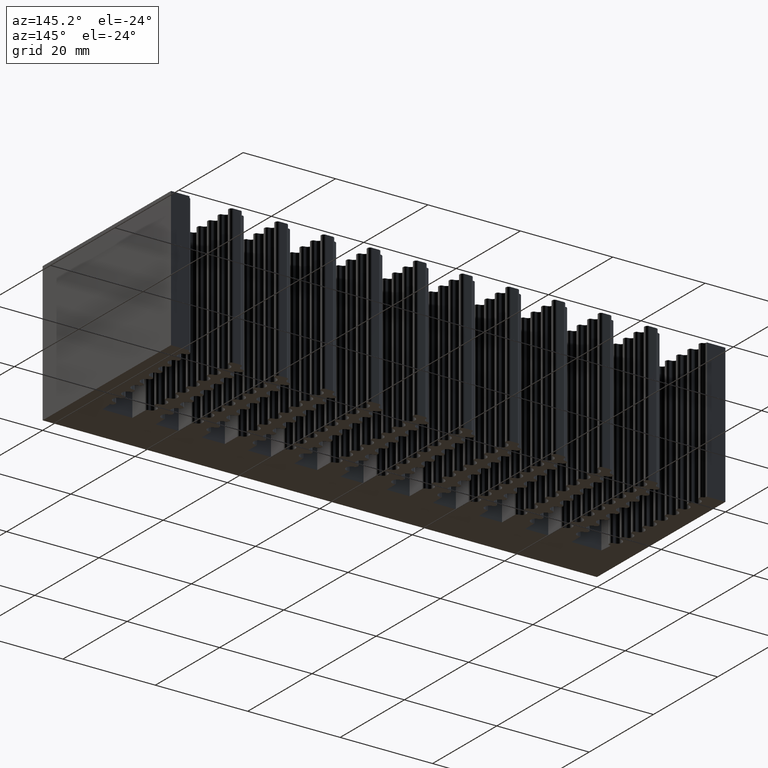
[diagram: clean part render]
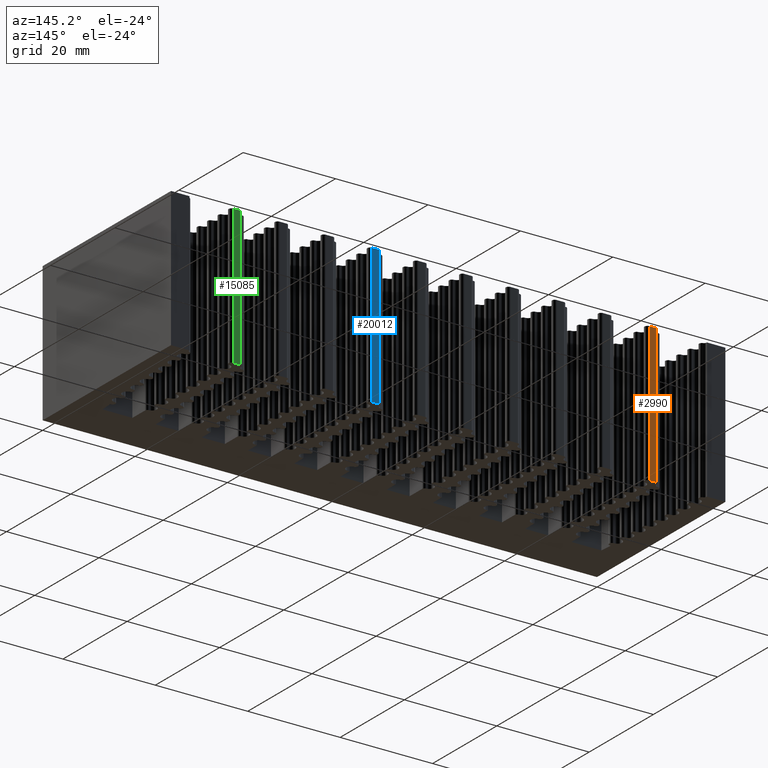
[diagram: same view with three faces highlighted in distinct colors, each labeled with its STEP entity id]
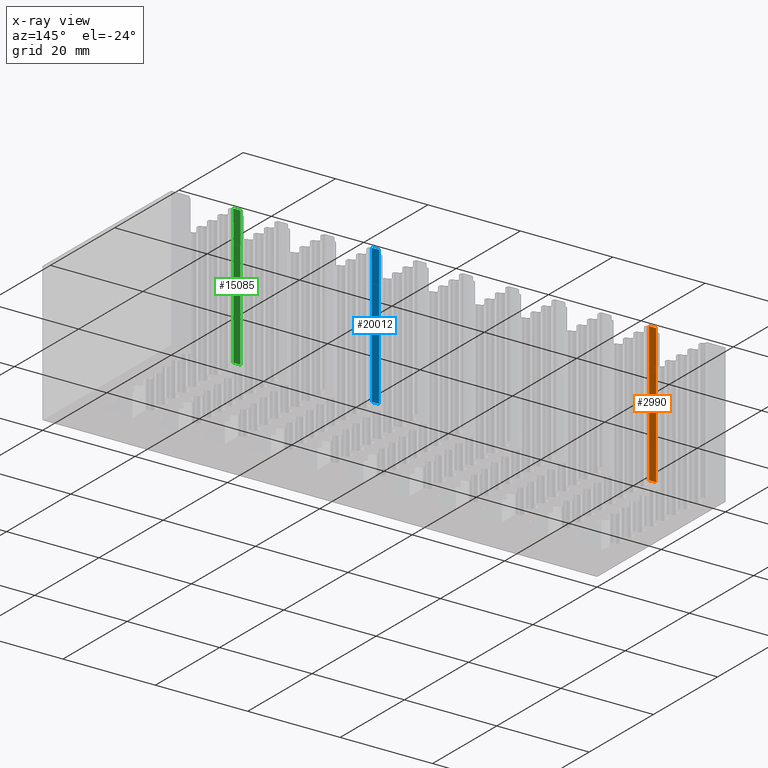
[diagram: x-ray of the same camera — body ghosted, the three highlighted faces saturated]
A machine part, auxiliary view with three faces highlighted in distinct colors.
The next image is the same camera in x-ray (body ghosted, the three faces saturated) — at least one of them is partly hidden behind the body in this view.
Their STEP definitions:

[orange] entity #2990 — the highlighted planar face has unit normal (0, 1, -0).
#1386 = PLANE ( 'NONE',  #7652 ) ;
#1420 = DIRECTION ( 'NONE',  ( -1.000000000000000000, 0.0000000000000000000, 0.0000000000000000000 ) ) ;
#1451 = ORIENTED_EDGE ( 'NONE', *, *, #18421, .T. ) ;
#2717 = EDGE_CURVE ( 'NONE', #8803, #17732, #8806, .T. ) ;
#2928 = DIRECTION ( 'NONE',  ( 0.0000000000000000000, 0.0000000000000000000, 1.000000000000000000 ) ) ;
#2990 = ADVANCED_FACE ( 'NONE', ( #11439 ), #1386, .T. ) ;
#3263 = VERTEX_POINT ( 'NONE', #4126 ) ;
#3331 = VECTOR ( 'NONE', #2928, 1000.000000000000000 ) ;
#3346 = EDGE_CURVE ( 'NONE', #3263, #17732, #21036, .T. ) ;
#3411 = LINE ( 'NONE', #6610, #20904 ) ;
#4126 = CARTESIAN_POINT ( 'NONE',  ( 14.98997438783720959, 39.99999999999998579, -30.00000000000000000 ) ) ;
#5208 = EDGE_LOOP ( 'NONE', ( #15712, #9806, #1451, #14667 ) ) ;
#6610 = CARTESIAN_POINT ( 'NONE',  ( 16.51038164213053250, 39.99999999999998579, -30.00000000000000000 ) ) ;
#6818 = DIRECTION ( 'NONE',  ( -1.000000000000000000, 0.0000000000000000000, 0.0000000000000000000 ) ) ;
#7114 = CARTESIAN_POINT ( 'NONE',  ( 14.98997438783720959, 39.99999999999998579, 0.0000000000000000000 ) ) ;
#7652 = AXIS2_PLACEMENT_3D ( 'NONE', #20053, #9792, #9682 ) ;
#7667 = CARTESIAN_POINT ( 'NONE',  ( 14.98997438783720959, 39.99999999999998579, -30.00000000000000000 ) ) ;
#8715 = CARTESIAN_POINT ( 'NONE',  ( 16.51038164213053250, 39.99999999999998579, 0.0000000000000000000 ) ) ;
#8803 = VERTEX_POINT ( 'NONE', #14957 ) ;
#8806 = LINE ( 'NONE', #8715, #11517 ) ;
#9682 = DIRECTION ( 'NONE',  ( 0.0000000000000000000, 0.0000000000000000000, 1.000000000000000000 ) ) ;
#9792 = DIRECTION ( 'NONE',  ( 0.0000000000000000000, 1.000000000000000000, -0.0000000000000000000 ) ) ;
#9806 = ORIENTED_EDGE ( 'NONE', *, *, #16130, .F. ) ;
#10659 = VECTOR ( 'NONE', #14301, 1000.000000000000000 ) ;
#11439 = FACE_OUTER_BOUND ( 'NONE', #5208, .T. ) ;
#11517 = VECTOR ( 'NONE', #6818, 1000.000000000000000 ) ;
#14301 = DIRECTION ( 'NONE',  ( 0.0000000000000000000, 0.0000000000000000000, 1.000000000000000000 ) ) ;
#14565 = CARTESIAN_POINT ( 'NONE',  ( 16.51038164213053250, 40.00000000000003553, -30.00000000000000000 ) ) ;
#14667 = ORIENTED_EDGE ( 'NONE', *, *, #3346, .T. ) ;
#14957 = CARTESIAN_POINT ( 'NONE',  ( 16.51038164213053250, 40.00000000000003553, 0.0000000000000000000 ) ) ;
#15712 = ORIENTED_EDGE ( 'NONE', *, *, #2717, .F. ) ;
#16130 = EDGE_CURVE ( 'NONE', #16995, #8803, #17955, .T. ) ;
#16995 = VERTEX_POINT ( 'NONE', #14565 ) ;
#17732 = VERTEX_POINT ( 'NONE', #7114 ) ;
#17955 = LINE ( 'NONE', #19731, #3331 ) ;
#18421 = EDGE_CURVE ( 'NONE', #16995, #3263, #3411, .T. ) ;
#19731 = CARTESIAN_POINT ( 'NONE',  ( 16.51038164213053250, 40.00000000000003553, -30.00000000000000000 ) ) ;
#20053 = CARTESIAN_POINT ( 'NONE',  ( 16.51038164213053250, 39.99999999999998579, -30.00000000000000000 ) ) ;
#20904 = VECTOR ( 'NONE', #1420, 1000.000000000000000 ) ;
#21036 = LINE ( 'NONE', #7667, #10659 ) ;

[blue] entity #20012 — the highlighted planar face has unit normal (0, 1, -0).
#664 = CARTESIAN_POINT ( 'NONE',  ( 76.51038164213051118, 40.00000000000003553, -30.00000000000000000 ) ) ;
#1277 = VERTEX_POINT ( 'NONE', #8045 ) ;
#1398 = CARTESIAN_POINT ( 'NONE',  ( 76.51038164213051118, 40.00000000000003553, 0.0000000000000000000 ) ) ;
#3287 = AXIS2_PLACEMENT_3D ( 'NONE', #3856, #12496, #20669 ) ;
#3856 = CARTESIAN_POINT ( 'NONE',  ( 76.51038164213051118, 39.99999999999998579, -30.00000000000000000 ) ) ;
#3950 = DIRECTION ( 'NONE',  ( 0.0000000000000000000, 0.0000000000000000000, 1.000000000000000000 ) ) ;
#4295 = EDGE_CURVE ( 'NONE', #1277, #9878, #19781, .T. ) ;
#4501 = DIRECTION ( 'NONE',  ( -1.000000000000000000, 0.0000000000000000000, 0.0000000000000000000 ) ) ;
#5092 = VECTOR ( 'NONE', #3950, 1000.000000000000000 ) ;
#7066 = EDGE_CURVE ( 'NONE', #11268, #9878, #17504, .T. ) ;
#7095 = VECTOR ( 'NONE', #13283, 1000.000000000000000 ) ;
#8045 = CARTESIAN_POINT ( 'NONE',  ( 74.98997438783715097, 39.99999999999998579, -30.00000000000000000 ) ) ;
#9199 = DIRECTION ( 'NONE',  ( -1.000000000000000000, 0.0000000000000000000, 0.0000000000000000000 ) ) ;
#9487 = EDGE_CURVE ( 'NONE', #14461, #1277, #21422, .T. ) ;
#9662 = EDGE_LOOP ( 'NONE', ( #18824, #9810, #21471, #19739 ) ) ;
#9810 = ORIENTED_EDGE ( 'NONE', *, *, #20802, .F. ) ;
#9878 = VERTEX_POINT ( 'NONE', #17746 ) ;
#10650 = VECTOR ( 'NONE', #9199, 1000.000000000000000 ) ;
#11268 = VERTEX_POINT ( 'NONE', #1398 ) ;
#11355 = CARTESIAN_POINT ( 'NONE',  ( 76.51038164213051118, 39.99999999999998579, -30.00000000000000000 ) ) ;
#11583 = VECTOR ( 'NONE', #4501, 1000.000000000000000 ) ;
#12496 = DIRECTION ( 'NONE',  ( 0.0000000000000000000, 1.000000000000000000, -0.0000000000000000000 ) ) ;
#12923 = CARTESIAN_POINT ( 'NONE',  ( 76.51038164213051118, 40.00000000000003553, -30.00000000000000000 ) ) ;
#13283 = DIRECTION ( 'NONE',  ( 0.0000000000000000000, 0.0000000000000000000, 1.000000000000000000 ) ) ;
#13932 = PLANE ( 'NONE',  #3287 ) ;
#14461 = VERTEX_POINT ( 'NONE', #12923 ) ;
#16701 = CARTESIAN_POINT ( 'NONE',  ( 74.98997438783715097, 39.99999999999998579, -30.00000000000000000 ) ) ;
#17504 = LINE ( 'NONE', #19030, #10650 ) ;
#17665 = FACE_OUTER_BOUND ( 'NONE', #9662, .T. ) ;
#17746 = CARTESIAN_POINT ( 'NONE',  ( 74.98997438783715097, 39.99999999999998579, 0.0000000000000000000 ) ) ;
#18824 = ORIENTED_EDGE ( 'NONE', *, *, #7066, .F. ) ;
#18988 = LINE ( 'NONE', #664, #5092 ) ;
#19030 = CARTESIAN_POINT ( 'NONE',  ( 76.51038164213051118, 39.99999999999998579, 0.0000000000000000000 ) ) ;
#19739 = ORIENTED_EDGE ( 'NONE', *, *, #4295, .T. ) ;
#19781 = LINE ( 'NONE', #16701, #7095 ) ;
#20012 = ADVANCED_FACE ( 'NONE', ( #17665 ), #13932, .T. ) ;
#20669 = DIRECTION ( 'NONE',  ( 0.0000000000000000000, 0.0000000000000000000, 1.000000000000000000 ) ) ;
#20802 = EDGE_CURVE ( 'NONE', #14461, #11268, #18988, .T. ) ;
#21422 = LINE ( 'NONE', #11355, #11583 ) ;
#21471 = ORIENTED_EDGE ( 'NONE', *, *, #9487, .T. ) ;

[green] entity #15085 — the highlighted planar face has unit normal (0, 1, -0).
#188 = ORIENTED_EDGE ( 'NONE', *, *, #15144, .T. ) ;
#400 = CARTESIAN_POINT ( 'NONE',  ( 104.9899743878371510, 39.99999999999998579, -30.00000000000000000 ) ) ;
#413 = DIRECTION ( 'NONE',  ( -1.000000000000000000, 0.0000000000000000000, 0.0000000000000000000 ) ) ;
#2537 = ORIENTED_EDGE ( 'NONE', *, *, #10426, .F. ) ;
#2609 = VECTOR ( 'NONE', #413, 1000.000000000000000 ) ;
#2623 = ORIENTED_EDGE ( 'NONE', *, *, #6718, .T. ) ;
#3620 = CARTESIAN_POINT ( 'NONE',  ( 106.5103816421304828, 40.00000000000005684, -30.00000000000000000 ) ) ;
#3704 = PLANE ( 'NONE',  #4325 ) ;
#3972 = EDGE_LOOP ( 'NONE', ( #18734, #2537, #2623, #188 ) ) ;
#4034 = LINE ( 'NONE', #19284, #2609 ) ;
#4325 = AXIS2_PLACEMENT_3D ( 'NONE', #20924, #15852, #7111 ) ;
#4537 = VECTOR ( 'NONE', #19680, 1000.000000000000000 ) ;
#5114 = CARTESIAN_POINT ( 'NONE',  ( 106.5103816421304828, 39.99999999999998579, 0.0000000000000000000 ) ) ;
#6198 = LINE ( 'NONE', #12950, #4537 ) ;
#6718 = EDGE_CURVE ( 'NONE', #18611, #7757, #4034, .T. ) ;
#6791 = VECTOR ( 'NONE', #9007, 1000.000000000000000 ) ;
#7111 = DIRECTION ( 'NONE',  ( 0.0000000000000000000, 0.0000000000000000000, 1.000000000000000000 ) ) ;
#7757 = VERTEX_POINT ( 'NONE', #13677 ) ;
#8340 = LINE ( 'NONE', #5114, #19207 ) ;
#8417 = CARTESIAN_POINT ( 'NONE',  ( 104.9899743878371510, 39.99999999999998579, 0.0000000000000000000 ) ) ;
#8504 = VERTEX_POINT ( 'NONE', #20606 ) ;
#8885 = FACE_OUTER_BOUND ( 'NONE', #3972, .T. ) ;
#9007 = DIRECTION ( 'NONE',  ( 0.0000000000000000000, 0.0000000000000000000, 1.000000000000000000 ) ) ;
#10426 = EDGE_CURVE ( 'NONE', #18611, #8504, #6198, .T. ) ;
#11975 = DIRECTION ( 'NONE',  ( -1.000000000000000000, 0.0000000000000000000, 0.0000000000000000000 ) ) ;
#12950 = CARTESIAN_POINT ( 'NONE',  ( 106.5103816421304828, 40.00000000000005684, -30.00000000000000000 ) ) ;
#13677 = CARTESIAN_POINT ( 'NONE',  ( 104.9899743878371510, 39.99999999999998579, -30.00000000000000000 ) ) ;
#14180 = LINE ( 'NONE', #400, #6791 ) ;
#15085 = ADVANCED_FACE ( 'NONE', ( #8885 ), #3704, .T. ) ;
#15144 = EDGE_CURVE ( 'NONE', #7757, #15792, #14180, .T. ) ;
#15792 = VERTEX_POINT ( 'NONE', #8417 ) ;
#15852 = DIRECTION ( 'NONE',  ( 0.0000000000000000000, 1.000000000000000000, -0.0000000000000000000 ) ) ;
#16353 = EDGE_CURVE ( 'NONE', #8504, #15792, #8340, .T. ) ;
#18611 = VERTEX_POINT ( 'NONE', #3620 ) ;
#18734 = ORIENTED_EDGE ( 'NONE', *, *, #16353, .F. ) ;
#19207 = VECTOR ( 'NONE', #11975, 1000.000000000000000 ) ;
#19284 = CARTESIAN_POINT ( 'NONE',  ( 106.5103816421304828, 39.99999999999998579, -30.00000000000000000 ) ) ;
#19680 = DIRECTION ( 'NONE',  ( 0.0000000000000000000, 0.0000000000000000000, 1.000000000000000000 ) ) ;
#20606 = CARTESIAN_POINT ( 'NONE',  ( 106.5103816421304828, 40.00000000000005684, 0.0000000000000000000 ) ) ;
#20924 = CARTESIAN_POINT ( 'NONE',  ( 106.5103816421304828, 39.99999999999998579, -30.00000000000000000 ) ) ;